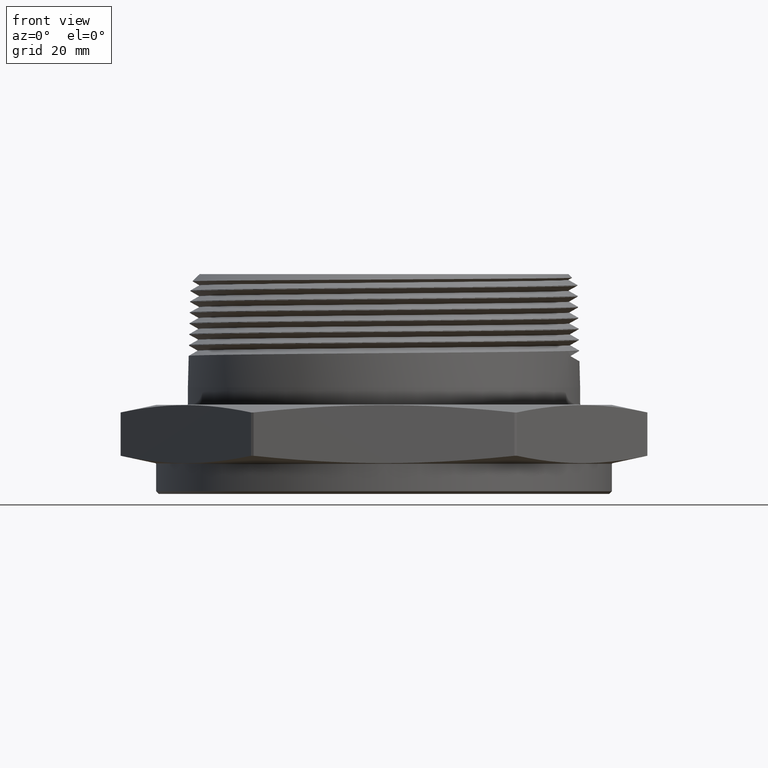
[diagram: clean part render]
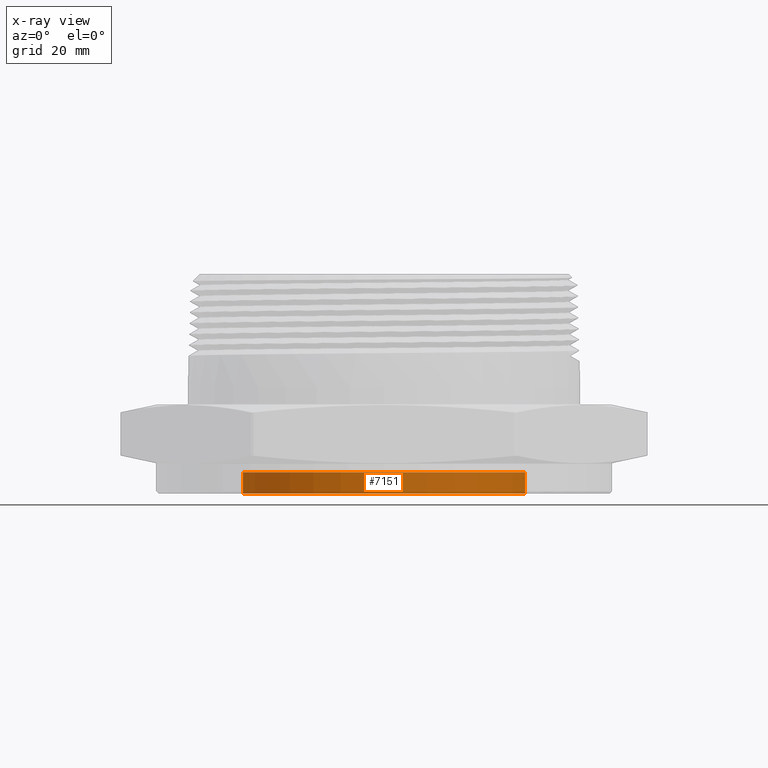
[diagram: x-ray — body ghosted, one internal face saturated and labeled with its STEP entity id]
A machine part, front view, then the same camera in x-ray: the body is ghosted and one INTERNAL B-rep face — a face not visible from any outside direction — is saturated and labeled: STEP entity #7151.
In plain terms, the highlighted cylindrical surface (partial cylindrical patch) has radius 41.0718 mm, axis along (0, -0, -1).
Its self-contained STEP definition (entity closure, byte-faithful):
#693 = VERTEX_POINT ( 'NONE', #7972 ) ;
#3595 = LINE ( 'NONE', #6562, #3602 ) ;
#3597 = LINE ( 'NONE', #6555, #3599 ) ;
#3598 = CIRCLE ( 'NONE', #8052, 1.616999999999999800 ) ;
#3599 = VECTOR ( 'NONE', #6550, 39.37007874015748100 ) ;
#3601 = CIRCLE ( 'NONE', #8053, 1.616999999999999800 ) ;
#3602 = VECTOR ( 'NONE', #6556, 39.37007874015748100 ) ;
#3630 = FACE_OUTER_BOUND ( 'NONE', #5527, .T. ) ;
#3640 = CYLINDRICAL_SURFACE ( 'NONE', #8072, 1.616999999999999800 ) ;
#3736 = VERTEX_POINT ( 'NONE', #5818 ) ;
#3745 = VERTEX_POINT ( 'NONE', #5821 ) ;
#3767 = VERTEX_POINT ( 'NONE', #5829 ) ;
#3956 = EDGE_CURVE ( 'NONE', #693, #3767, #3597, .T. ) ;
#3957 = EDGE_CURVE ( 'NONE', #3745, #3767, #3598, .T. ) ;
#3958 = EDGE_CURVE ( 'NONE', #3736, #3745, #3595, .T. ) ;
#3959 = EDGE_CURVE ( 'NONE', #3736, #693, #3601, .T. ) ;
#5383 = ORIENTED_EDGE ( 'NONE', *, *, #3956, .F. ) ;
#5384 = ORIENTED_EDGE ( 'NONE', *, *, #3957, .T. ) ;
#5385 = ORIENTED_EDGE ( 'NONE', *, *, #3958, .T. ) ;
#5386 = ORIENTED_EDGE ( 'NONE', *, *, #3959, .F. ) ;
#5527 = EDGE_LOOP ( 'NONE', ( #5386, #5385, #5384, #5383 ) ) ;
#5818 = CARTESIAN_POINT ( 'NONE',  ( 1.616999999999999800, 1.980253874221269800E-016, -0.1037795275590551000 ) ) ;
#5821 = CARTESIAN_POINT ( 'NONE',  ( 1.616999999999999800, 1.980253874221269800E-016, -0.3499999999999999800 ) ) ;
#5829 = CARTESIAN_POINT ( 'NONE',  ( -1.616999999999999800, 0.0000000000000000000, -0.3499999999999999800 ) ) ;
#6550 = DIRECTION ( 'NONE',  ( 2.862758958035005200E-018, -0.0000000000000000000, -1.000000000000000000 ) ) ;
#6555 = CARTESIAN_POINT ( 'NONE',  ( -1.616999999999999800, 0.0000000000000000000, -0.3499999999999999800 ) ) ;
#6556 = DIRECTION ( 'NONE',  ( 2.862758958035005200E-018, -0.0000000000000000000, -1.000000000000000000 ) ) ;
#6562 = CARTESIAN_POINT ( 'NONE',  ( 1.616999999999999800, 1.980253874221269800E-016, -0.3499999999999999800 ) ) ;
#6563 = CARTESIAN_POINT ( 'NONE',  ( 3.673940397442059200E-018, 0.0000000000000000000, -0.3499999999999999800 ) ) ;
#6564 = DIRECTION ( 'NONE',  ( 2.862758958035005200E-018, -0.0000000000000000000, -1.000000000000000000 ) ) ;
#6565 = DIRECTION ( 'NONE',  ( -1.000000000000000000, 0.0000000000000000000, 0.0000000000000000000 ) ) ;
#6567 = CARTESIAN_POINT ( 'NONE',  ( 2.969070534310133100E-018, 0.0000000000000000000, -0.1037795275590551000 ) ) ;
#6568 = DIRECTION ( 'NONE',  ( 2.862758958035005200E-018, -0.0000000000000000000, -1.000000000000000000 ) ) ;
#6569 = DIRECTION ( 'NONE',  ( -1.000000000000000000, 0.0000000000000000000, 0.0000000000000000000 ) ) ;
#6708 = DIRECTION ( 'NONE',  ( -1.000000000000000000, 0.0000000000000000000, 0.0000000000000000000 ) ) ;
#6710 = CARTESIAN_POINT ( 'NONE',  ( 3.673940397442059200E-018, 0.0000000000000000000, -0.3499999999999999800 ) ) ;
#6711 = DIRECTION ( 'NONE',  ( 2.862758958035005200E-018, -0.0000000000000000000, -1.000000000000000000 ) ) ;
#7151 = ADVANCED_FACE ( 'NONE', ( #3630 ), #3640, .F. ) ;
#7972 = CARTESIAN_POINT ( 'NONE',  ( -1.616999999999999800, 0.0000000000000000000, -0.1037795275590551000 ) ) ;
#8052 = AXIS2_PLACEMENT_3D ( 'NONE', #6563, #6564, #6565 ) ;
#8053 = AXIS2_PLACEMENT_3D ( 'NONE', #6567, #6568, #6569 ) ;
#8072 = AXIS2_PLACEMENT_3D ( 'NONE', #6710, #6711, #6708 ) ;